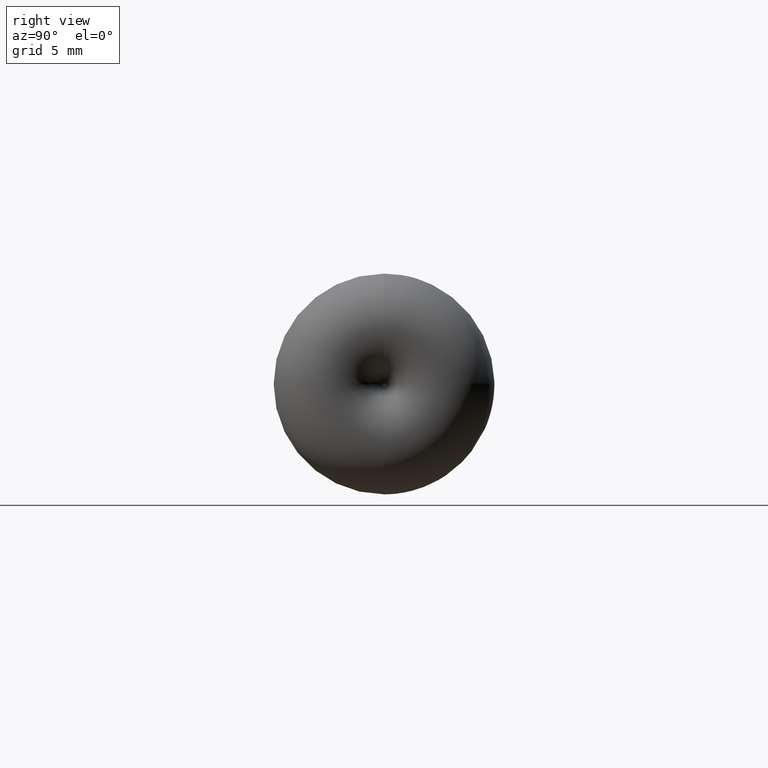
[diagram: clean part render]
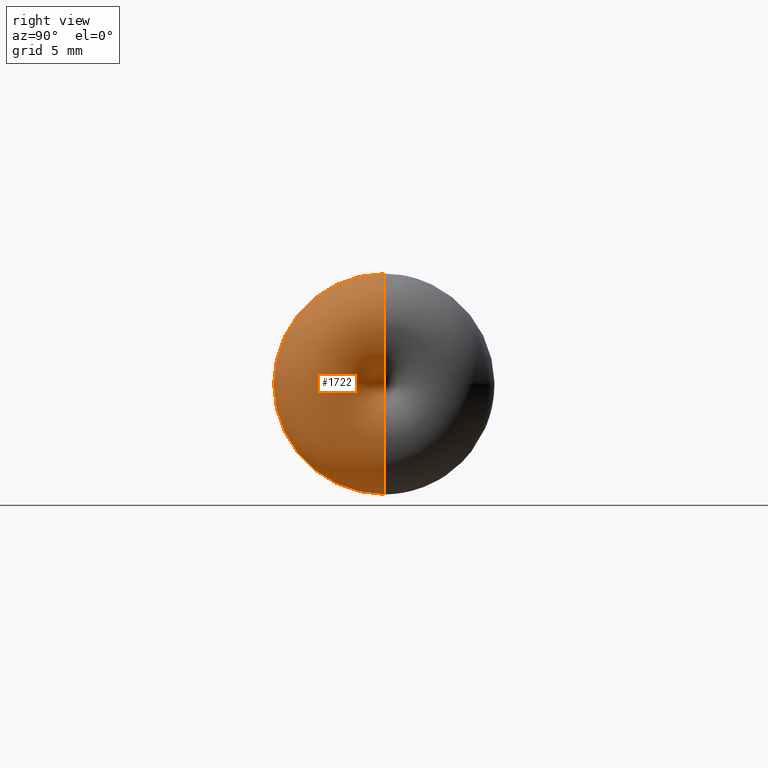
[diagram: same view with one face highlighted and labeled with its STEP entity id]
A machine part, right view. The second image highlights one B-rep face of the part: STEP entity #1722.
In plain terms, the highlighted toroidal blend (fillet) surface has major radius 4.0006 mm and minor (blend) radius 4 mm.
Its self-contained STEP definition (entity closure, byte-faithful):
#32 = CIRCLE ( 'NONE', #2279, 3.999999999999999100 ) ;
#52 = ORIENTED_EDGE ( 'NONE', *, *, #1055, .F. ) ;
#53 = CARTESIAN_POINT ( 'NONE',  ( -3.119050029815091800, 7.479513648928535400E-020, 0.0006107486382302476600 ) ) ;
#72 = VERTEX_POINT ( 'NONE', #724 ) ;
#110 = VERTEX_POINT ( 'NONE', #53 ) ;
#226 = VERTEX_POINT ( 'NONE', #1385 ) ;
#255 = CARTESIAN_POINT ( 'NONE',  ( -3.119050029815091400, 4.899335147954305300E-016, 4.000610748638230500 ) ) ;
#327 = DIRECTION ( 'NONE',  ( 0.0000000000000000000, 0.0000000000000000000, -1.000000000000000000 ) ) ;
#512 = DIRECTION ( 'NONE',  ( 0.0000000000000000000, 0.0000000000000000000, -1.000000000000000000 ) ) ;
#565 = DIRECTION ( 'NONE',  ( -0.0000000000000000000, -1.000000000000000000, -0.0000000000000000000 ) ) ;
#588 = CARTESIAN_POINT ( 'NONE',  ( -3.119050029815091400, 0.0000000000000000000, 0.0000000000000000000 ) ) ;
#672 = AXIS2_PLACEMENT_3D ( 'NONE', #1964, #1112, #512 ) ;
#724 = CARTESIAN_POINT ( 'NONE',  ( -3.119050029815091400, 9.797922344543718200E-016, 8.000610748638228700 ) ) ;
#753 = AXIS2_PLACEMENT_3D ( 'NONE', #255, #1107, #2587 ) ;
#801 = ORIENTED_EDGE ( 'NONE', *, *, #850, .T. ) ;
#850 = EDGE_CURVE ( 'NONE', #2518, #226, #32, .T. ) ;
#1022 = CIRCLE ( 'NONE', #753, 3.999999999999999100 ) ;
#1055 = EDGE_CURVE ( 'NONE', #72, #110, #1022, .T. ) ;
#1077 = ORIENTED_EDGE ( 'NONE', *, *, #2416, .T. ) ;
#1107 = DIRECTION ( 'NONE',  ( 0.0000000000000000000, 1.000000000000000000, -1.224646799147353200E-016 ) ) ;
#1112 = DIRECTION ( 'NONE',  ( 1.000000000000000000, -0.0000000000000000000, -0.0000000000000000000 ) ) ;
#1193 = EDGE_LOOP ( 'NONE', ( #52, #1077, #801, #1872 ) ) ;
#1206 = DIRECTION ( 'NONE',  ( 1.000000000000000000, -0.0000000000000000000, -0.0000000000000000000 ) ) ;
#1265 = AXIS2_PLACEMENT_3D ( 'NONE', #588, #1621, #2469 ) ;
#1281 = CIRCLE ( 'NONE', #672, 8.000610748638228700 ) ;
#1322 = TOROIDAL_SURFACE ( 'NONE', #1265, 4.000610748638230500, 4.000000000000000000 ) ;
#1385 = CARTESIAN_POINT ( 'NONE',  ( -3.119050029815091800, 0.0000000000000000000, -0.0006107486382302476600 ) ) ;
#1422 = AXIS2_PLACEMENT_3D ( 'NONE', #1434, #1206, #2673 ) ;
#1434 = CARTESIAN_POINT ( 'NONE',  ( -3.119050029815091800, 0.0000000000000000000, 0.0000000000000000000 ) ) ;
#1540 = CIRCLE ( 'NONE', #1422, 0.0006107486382302476600 ) ;
#1621 = DIRECTION ( 'NONE',  ( 1.000000000000000000, -0.0000000000000000000, -0.0000000000000000000 ) ) ;
#1722 = ADVANCED_FACE ( 'NONE', ( #1876 ), #1322, .T. ) ;
#1793 = CARTESIAN_POINT ( 'NONE',  ( -3.119050029815091400, 0.0000000000000000000, -4.000610748638230500 ) ) ;
#1872 = ORIENTED_EDGE ( 'NONE', *, *, #2126, .F. ) ;
#1876 = FACE_OUTER_BOUND ( 'NONE', #1193, .T. ) ;
#1964 = CARTESIAN_POINT ( 'NONE',  ( -3.119050029815091400, 0.0000000000000000000, 0.0000000000000000000 ) ) ;
#2126 = EDGE_CURVE ( 'NONE', #110, #226, #1540, .T. ) ;
#2279 = AXIS2_PLACEMENT_3D ( 'NONE', #1793, #565, #327 ) ;
#2416 = EDGE_CURVE ( 'NONE', #72, #2518, #1281, .T. ) ;
#2469 = DIRECTION ( 'NONE',  ( 0.0000000000000000000, 0.0000000000000000000, -1.000000000000000000 ) ) ;
#2518 = VERTEX_POINT ( 'NONE', #2548 ) ;
#2548 = CARTESIAN_POINT ( 'NONE',  ( -3.119050029815091400, 0.0000000000000000000, -8.000610748638228700 ) ) ;
#2587 = DIRECTION ( 'NONE',  ( 0.0000000000000000000, 1.224646799147353500E-016, 1.000000000000000000 ) ) ;
#2673 = DIRECTION ( 'NONE',  ( 0.0000000000000000000, 0.0000000000000000000, -1.000000000000000000 ) ) ;